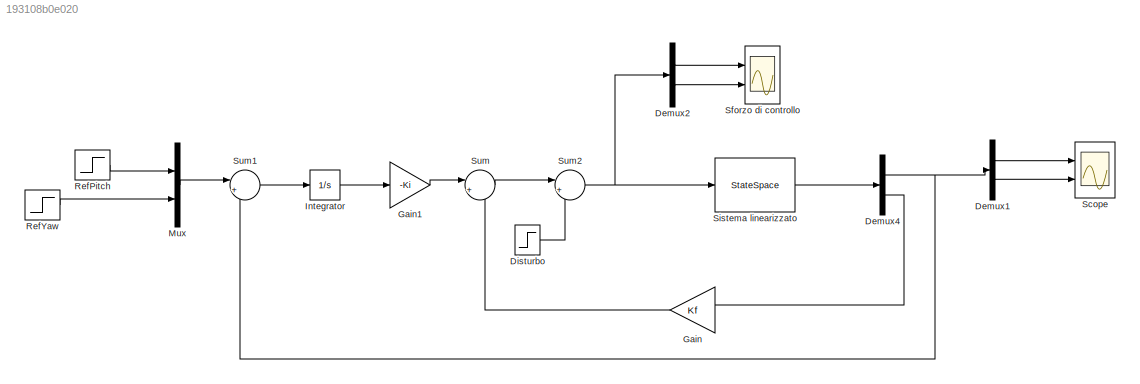
MODEL slx_193108b0e020
KIND model
CONFIG AbsTol = auto
CONFIG EnableMultiTasking = off
CONFIG FixedStep = auto
CONFIG MaxStep = 1e-3
CONFIG MinStep = auto
CONFIG RelTol = 1e-3
CONFIG SampleTimeConstraint = Unconstrained
CONFIG SolverName = VariableStepAuto
CONFIG StartTime = 0.0
CONFIG StopTime = 10.0
BLOCK [Demux] Demux1
  Outputs = 2
  Ports = [1, 2]
BLOCK [Demux] Demux2
  Outputs = 2
  Ports = [1, 2]
BLOCK [Demux] Demux4
  Outputs = [2 4]
  Ports = [1, 2]
BLOCK [Step] Disturbo
  After = 0
  SampleTime = 0
  Time = 6
BLOCK [Gain] Gain
  Gain = Kf
  Multiplication = Matrix(K*u)
BLOCK [Gain] Gain1
  Gain = -Ki
  Multiplication = Matrix(K*u)
BLOCK [Integrator] Integrator
  Ports = [1, 1]
BLOCK [Mux] Mux
  DisplayOption = bar
  Inputs = 2
  Ports = [2, 1]
BLOCK [Step] RefPitch
  After = 0.3
  SampleTime = 0
BLOCK [Step] RefYaw
  After = 0.3
  SampleTime = 0
BLOCK [Scope] Scope
  Floating = off
  NumInputPorts = 2
  Ports = [2]
  ScopeSpecificationString = Simulink.scopes.TimeScopeBlockCfg('CurrentConfiguration', extmgr.ConfigurationSet(extmgr.Configuration('Core','General UI',true),extmgr.Configuration('Core','Source UI',true),extmgr.Configuration('Sources','WiredSimulink',true),extmgr.Configuration('Visuals','Time Domain',true,'SerializedDisplays',{struct('MinYLimReal','0.258','MaxYLimReal','0.30417','YLabelReal','','MinYLimMag','0.258','MaxYLimMa...<+2039ch>
BLOCK [Scope] Sforzo di controllo
  Floating = off
  NumInputPorts = 2
  Ports = [2]
  ScopeSpecificationString = Simulink.scopes.TimeScopeBlockCfg('CurrentConfiguration', extmgr.ConfigurationSet(extmgr.Configuration('Core','General UI',true),extmgr.Configuration('Core','Source UI',true),extmgr.Configuration('Sources','WiredSimulink',true,'DataLoggingVariableName','ScopeData1'),extmgr.Configuration('Visuals','Time Domain',true,'SerializedDisplays',{struct('MinYLimReal','-0.10001','MaxYLimReal','0.90008','YLab...<+2041ch>
BLOCK [StateSpace] Sistema linearizzato
  A = A
  B = B
  C = [C; eye(4)]
  D = zeros(6,2)
  InitialCondition = [0;0;0;0]
  ParameterTunability = Optimized
  Ports = [1, 1]
BLOCK [Sum] Sum
  Inputs = |+-
  Ports = [2, 1]
BLOCK [Sum] Sum1
  Inputs = |+-
  Ports = [2, 1]
BLOCK [Sum] Sum2
  Inputs = |++
  Ports = [2, 1]
LINE Demux1:1 -> Scope:1
LINE Demux1:2 -> Scope:2
LINE Demux2:1 -> Sforzo di controllo:1
LINE Demux2:2 -> Sforzo di controllo:2
NET Demux4:1 -> Demux1:1, Sum1:2
LINE Demux4:2 -> Gain:1
LINE Disturbo:1 -> Sum2:2
LINE Gain1:1 -> Sum:1
LINE Gain:1 -> Sum:2
LINE Integrator:1 -> Gain1:1
LINE Mux:1 -> Sum1:1
LINE RefPitch:1 -> Mux:1
LINE RefYaw:1 -> Mux:2
LINE Sistema linearizzato:1 -> Demux4:1
LINE Sum1:1 -> Integrator:1
NET Sum2:1 -> Demux2:1, Sistema linearizzato:1
LINE Sum:1 -> Sum2:1
note: NET lines group one-source signal fan-out (src -> all destinations, sorted); 1:1 wires keep LINE
